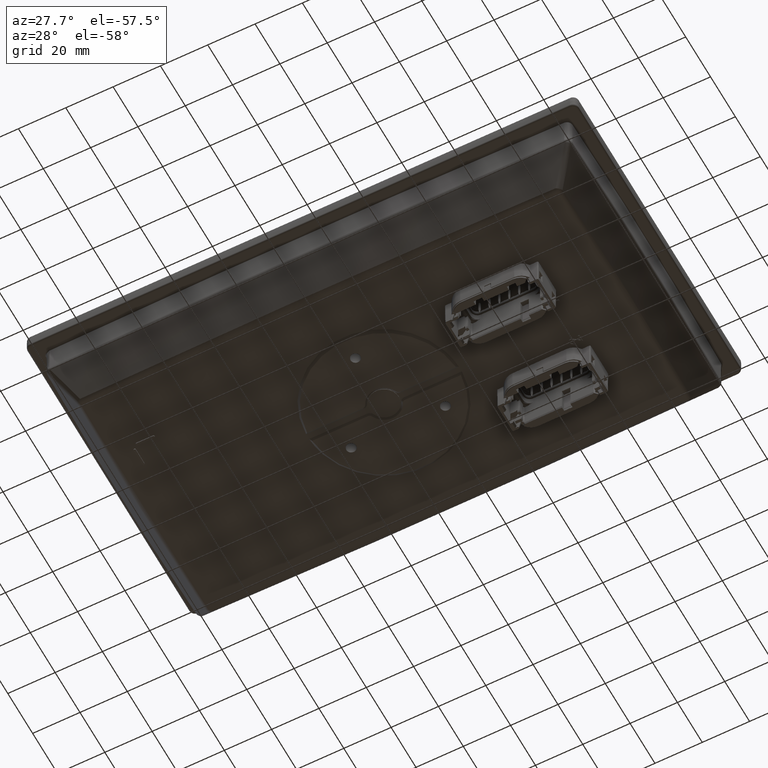
[diagram: clean part render]
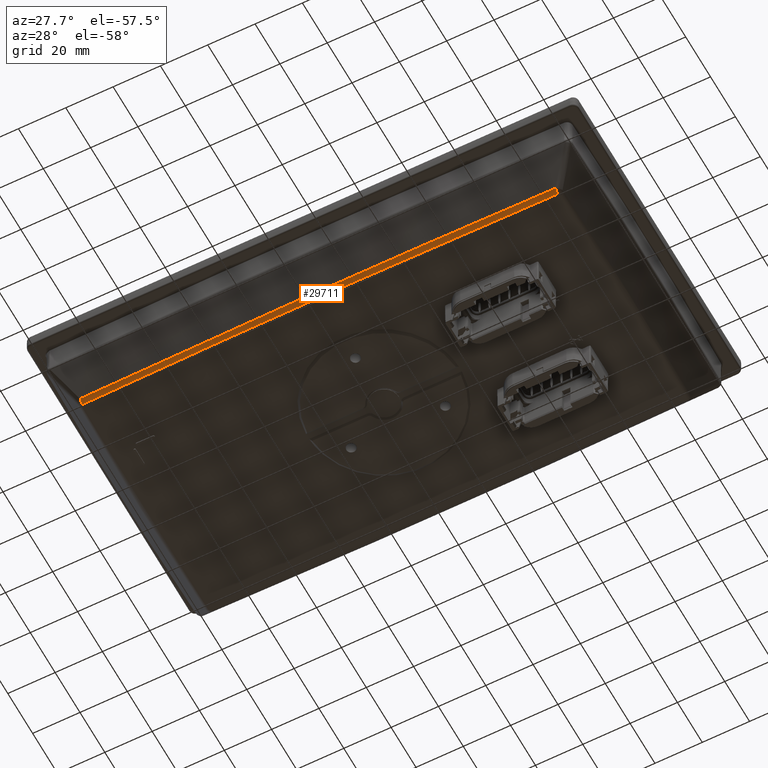
[diagram: same view with one face highlighted and labeled with its STEP entity id]
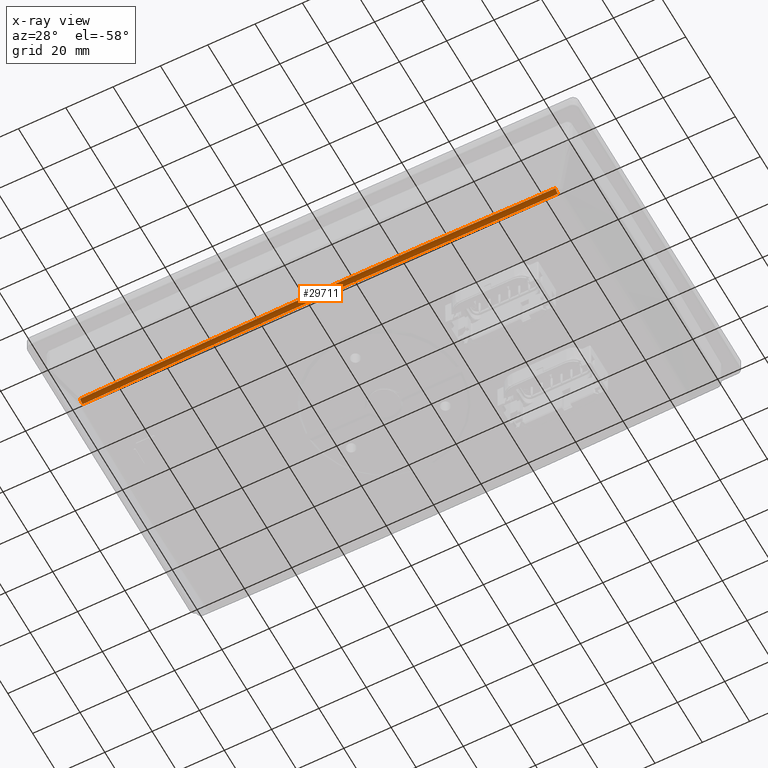
[diagram: x-ray of the same camera — body ghosted, the highlighted face saturated]
A machine part, auxiliary view. The second image highlights one B-rep face of the part: STEP entity #29711.
The next image is the same camera in x-ray: the body ghosted, the highlighted face saturated — about 0% of this face is hidden behind the body in this view.
In plain terms, the highlighted face is a freeform B-spline surface patch.
Its self-contained STEP definition (entity closure, byte-faithful):
#545=(
BOUNDED_SURFACE()
B_SPLINE_SURFACE(3,2,((#50235,#50236,#50237),(#50238,#50239,#50240),(#50241,
#50242,#50243),(#50244,#50245,#50246)),.UNSPECIFIED.,.F.,.F.,.F.)
B_SPLINE_SURFACE_WITH_KNOTS((4,4),(3,3),(0.232827534003727,0.433699971283144),
(0.,1.),.PIECEWISE_BEZIER_KNOTS.)
GEOMETRIC_REPRESENTATION_ITEM()
RATIONAL_B_SPLINE_SURFACE(((1.,0.866208522264481,1.),(1.,0.874466420978401,
1.),(1.,0.874430312668752,1.),(1.,0.866209159830778,1.)))
REPRESENTATION_ITEM('')
SURFACE()
);
#1711=CIRCLE('',#35483,2.3);
#1712=CIRCLE('',#35486,2.3);
#11275=ORIENTED_EDGE('',*,*,#18868,.T.);
#11276=ORIENTED_EDGE('',*,*,#17616,.F.);
#11277=ORIENTED_EDGE('',*,*,#18870,.F.);
#11278=ORIENTED_EDGE('',*,*,#18866,.F.);
#17616=EDGE_CURVE('',#21999,#22000,#24796,.T.);
#18866=EDGE_CURVE('',#22811,#22812,#24922,.T.);
#18868=EDGE_CURVE('',#22811,#22000,#1711,.F.);
#18870=EDGE_CURVE('',#22812,#21999,#1712,.T.);
#21999=VERTEX_POINT('',#46908);
#22000=VERTEX_POINT('',#46913);
#22811=VERTEX_POINT('',#50042);
#22812=VERTEX_POINT('',#50065);
#24796=B_SPLINE_CURVE_WITH_KNOTS('',3,(#46909,#46910,#46911,#46912),
 .UNSPECIFIED.,.F.,.F.,(4,4),(0.,0.200902632407784),.UNSPECIFIED.);
#24922=B_SPLINE_CURVE_WITH_KNOTS('',3,(#50158,#50159,#50160,#50161),
 .UNSPECIFIED.,.F.,.F.,(4,4),(5.55111512312578E-17,0.200961986295189),
 .UNSPECIFIED.);
#25711=EDGE_LOOP('',(#11275,#11276,#11277,#11278));
#27707=FACE_BOUND('',#25711,.T.);
#29711=ADVANCED_FACE('',(#27707),#545,.T.);
#35483=AXIS2_PLACEMENT_3D('',#50164,#40039,#40040);
#35486=AXIS2_PLACEMENT_3D('',#50171,#40045,#40046);
#40039=DIRECTION('',(-0.999873774948656,0.0158678092542578,0.000804238394250457));
#40040=DIRECTION('',(-0.015867814385905,-0.999874098307689,0.));
#40045=DIRECTION('',(0.999873701682119,0.0158728668536036,0.000795476174346395));
#40046=DIRECTION('',(-0.015872871875641,0.999874018033482,0.));
#46908=CARTESIAN_POINT('',(100.446330242029,-51.3146496654161,-32.6010210286402));
#46909=CARTESIAN_POINT('',(100.446330242029,-51.3146496654161,-32.6010210286402));
#46910=CARTESIAN_POINT('',(33.4881224762305,-52.4536365491399,-32.654236685931));
#46911=CARTESIAN_POINT('',(-33.488147948568,-52.4529721315383,-32.6548151714931));
#46912=CARTESIAN_POINT('',(-100.4463551586,-51.3146599451892,-32.6010126827702));
#46913=CARTESIAN_POINT('',(-100.4463551586,-51.3146599451908,-32.6010126827704));
#50042=CARTESIAN_POINT('',(-100.477010010961,-53.3045916049563,-31.4510140479695));
#50065=CARTESIAN_POINT('',(100.477005328071,-53.3045868741056,-31.4510223734196));
#50158=CARTESIAN_POINT('',(-100.477010010961,-53.3045916049561,-31.4510140479694));
#50159=CARTESIAN_POINT('',(-33.4976023900978,-54.3675523118631,-31.50487081689));
#50160=CARTESIAN_POINT('',(33.4975999995584,-54.3678863105873,-31.5042923720654));
#50161=CARTESIAN_POINT('',(100.477005328071,-53.3045868741061,-31.4510223734196));
#50164=CARTESIAN_POINT('',(-100.444478816529,-51.3129988450313,-30.3010140479694));
#50171=CARTESIAN_POINT('',(100.44447413513,-51.3129941141555,-30.3010223734196));
#50235=CARTESIAN_POINT('',(100.477005328071,-53.3045868741053,-31.4510223734195));
#50236=CARTESIAN_POINT('',(100.467389309975,-52.6412645446274,-32.6000491294555));
#50237=CARTESIAN_POINT('',(100.446330242029,-51.3146496654165,-32.6010210286403));
#50238=CARTESIAN_POINT('',(33.4979927533829,-54.3678800619437,-31.5042920833709));
#50239=CARTESIAN_POINT('',(34.1175007558531,-53.7196736842177,-32.6093665812726));
#50240=CARTESIAN_POINT('',(33.4736776884103,-52.4538822063542,-32.6542481661033));
#50241=CARTESIAN_POINT('',(-33.4976883207418,-54.3675509390804,-31.5048707634977));
#50242=CARTESIAN_POINT('',(-34.1157181118236,-53.7192627674354,-32.6101291983385));
#50243=CARTESIAN_POINT('',(-33.4753513364183,-52.4531896405388,-32.6548254538986));
#50244=CARTESIAN_POINT('',(-100.477010010961,-53.3045916049567,-31.4510140479695));
#50245=CARTESIAN_POINT('',(-100.467407443026,-52.6412710178581,-32.6000374060389));
#50246=CARTESIAN_POINT('',(-100.4463551586,-51.3146599451903,-32.6010126827705));